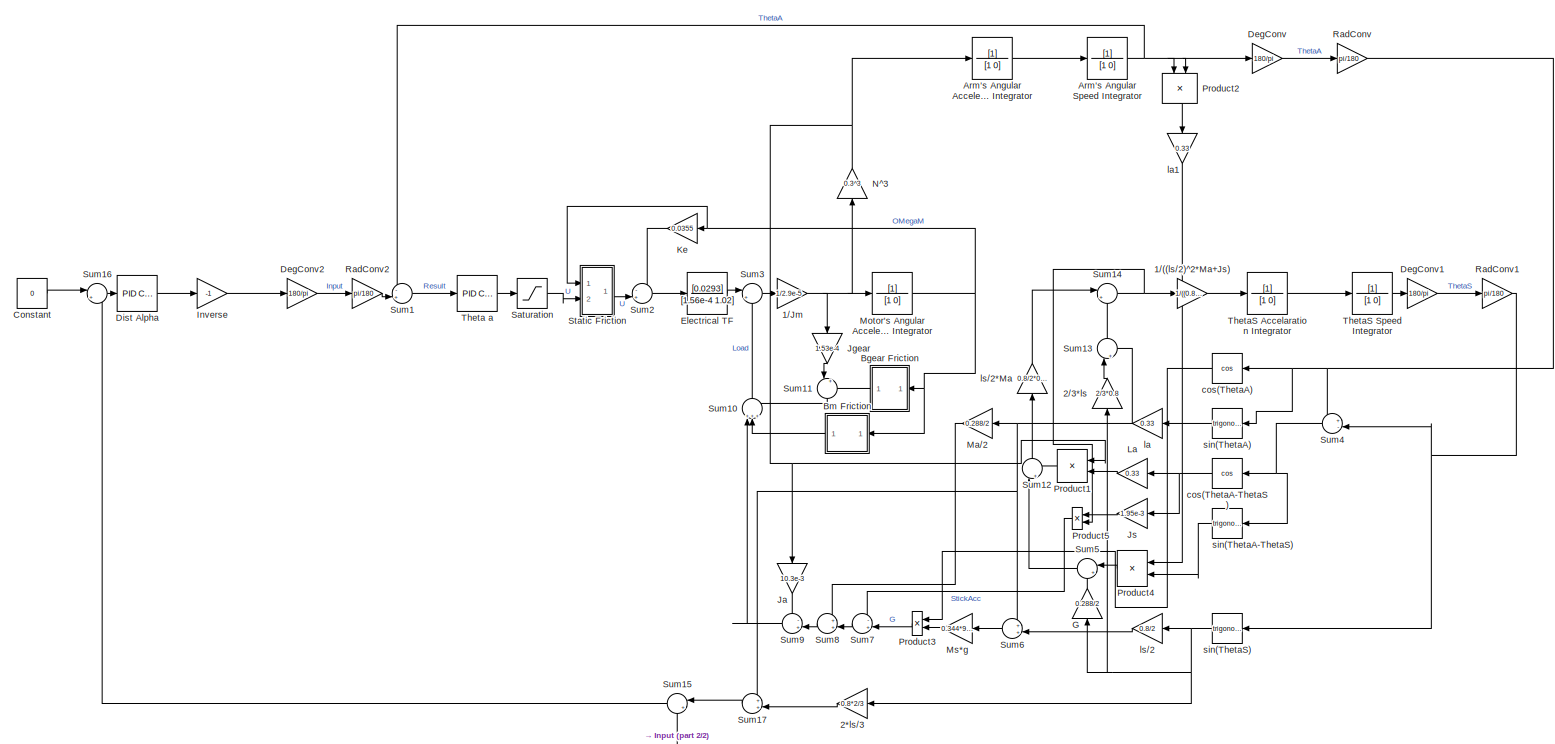
[diagram: root canvas - part 1/2, most of the canvas]
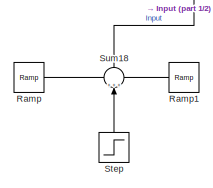
[diagram: root canvas - part 2/2, bottom center region]
MODEL slx_b78cf8a66c72
KIND model
CONFIG AbsTol = auto
CONFIG EnableMultiTasking = off
CONFIG FixedStep = auto
CONFIG MaxStep = auto
CONFIG MinStep = auto
CONFIG RelTol = 1e-3
CONFIG SampleTimeConstraint = Unconstrained
CONFIG Solver = VariableStepAuto
CONFIG SolverName = VariableStepAuto
CONFIG StartTime = 0.0
CONFIG StopTime = 10
BLOCK [Gain] 1//((ls//2)^2*Ma+Js)
  Gain = 1/((0.8/2)^2*0.288+1.95e-3)
  OutDataTypeStr = Inherit: Inherit via internal rule
  ParamDataTypeStr = Inherit: Inherit via internal rule
  SaturateOnIntegerOverflow = off
BLOCK [Gain] 1//Jm
  Gain = 1/2.9e-5
  OutDataTypeStr = Inherit: Inherit via internal rule
  ParamDataTypeStr = Inherit: Inherit via internal rule
  SaturateOnIntegerOverflow = off
BLOCK [Gain] 2*ls//3
  Gain = 0.8*2/3
  OutDataTypeStr = Inherit: Inherit via internal rule
  ParamDataTypeStr = Inherit: Inherit via internal rule
  SaturateOnIntegerOverflow = off
BLOCK [Gain] 2//3*ls
  Gain = 2/3*0.8
  OutDataTypeStr = Inherit: Inherit via internal rule
  ParamDataTypeStr = Inherit: Inherit via internal rule
  SaturateOnIntegerOverflow = off
BLOCK [TransferFcn] Arm's Angular Acceleration Integrator
  Denominator = [1 0]
BLOCK [TransferFcn] Arm's Angular Speed Integrator
  Denominator = [1 0]
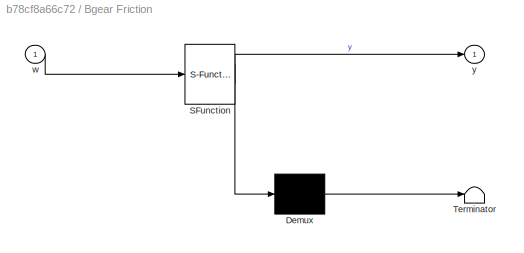
BLOCK [SubSystem] Bgear Friction
  ErrorFcn = Stateflow.Translate.translate
  PermitHierarchicalResolution = ExplicitOnly
  Ports = [1, 1]
  RequestExecContextInheritance = off
  SFBlockType = MATLAB Function
  TreatAsAtomicUnit = on
  Variant = off
BLOCK [Demux] Bgear Friction/ Demux 
  Outputs = 1
  Ports = [1, 1]
BLOCK [S-Function] Bgear Friction/ SFunction 
  EnableBusSupport = on
  FunctionName = sf_sfun
  PortCounts = [1 2]
  Ports = [1, 2]
  SFcnIsStateOwnerBlock = off
  SFunctionDeploymentMode = off
  Tag = Stateflow S-Function UnlinearSimulation3 3
BLOCK [Terminator] Bgear Friction/ Terminator 
BLOCK [Inport] Bgear Friction/w
  IconDisplay = Port number
BLOCK [Outport] Bgear Friction/y
  IconDisplay = Port number
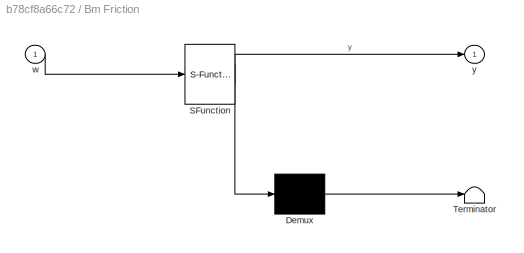
BLOCK [SubSystem] Bm Friction
  ErrorFcn = Stateflow.Translate.translate
  PermitHierarchicalResolution = ExplicitOnly
  Ports = [1, 1]
  RequestExecContextInheritance = off
  SFBlockType = MATLAB Function
  TreatAsAtomicUnit = on
  Variant = off
BLOCK [Demux] Bm Friction/ Demux 
  Outputs = 1
  Ports = [1, 1]
BLOCK [S-Function] Bm Friction/ SFunction 
  EnableBusSupport = on
  FunctionName = sf_sfun
  PortCounts = [1 2]
  Ports = [1, 2]
  SFcnIsStateOwnerBlock = off
  SFunctionDeploymentMode = off
  Tag = Stateflow S-Function UnlinearSimulation3 1
BLOCK [Terminator] Bm Friction/ Terminator 
BLOCK [Inport] Bm Friction/w
  IconDisplay = Port number
BLOCK [Outport] Bm Friction/y
  IconDisplay = Port number
BLOCK [Constant] Constant
  Value = 0
BLOCK [Gain] DegConv
  Gain = 180/pi
  OutDataTypeStr = Inherit: Inherit via internal rule
  ParamDataTypeStr = Inherit: Inherit via internal rule
  SaturateOnIntegerOverflow = off
BLOCK [Gain] DegConv1
  Gain = 180/pi
  OutDataTypeStr = Inherit: Inherit via internal rule
  ParamDataTypeStr = Inherit: Inherit via internal rule
  SaturateOnIntegerOverflow = off
BLOCK [Gain] DegConv2
  Gain = 180/pi
  OutDataTypeStr = Inherit: Inherit via internal rule
  ParamDataTypeStr = Inherit: Inherit via internal rule
  SaturateOnIntegerOverflow = off
BLOCK [Reference] Dist Alpha  REF=simulink/Continuous/PID Controller
  Ports = [1, 1]
  SourceBlock = simulink/Continuous/PID Controller
  SourceProductBaseCode = SL
  SourceProductName = Simulink
  SourceType = PID 1dof
BLOCK [TransferFcn] Electrical TF
  Denominator = [1.56e-4 1.02]
  Numerator = [0.0293]
BLOCK [Gain] G
  Gain = 0.288/2
  OutDataTypeStr = Inherit: Inherit via internal rule
  ParamDataTypeStr = Inherit: Inherit via internal rule
  SaturateOnIntegerOverflow = off
BLOCK [Gain] Inverse
  Gain = -1
  OutDataTypeStr = Inherit: Inherit via internal rule
  ParamDataTypeStr = Inherit: Inherit via internal rule
  SaturateOnIntegerOverflow = off
BLOCK [Gain] Ja
  Gain = 10.3e-3
  OutDataTypeStr = Inherit: Inherit via internal rule
  ParamDataTypeStr = Inherit: Inherit via internal rule
  SaturateOnIntegerOverflow = off
BLOCK [Gain] Jgear
  Gain = 1.53e-4
  OutDataTypeStr = Inherit: Inherit via internal rule
  ParamDataTypeStr = Inherit: Inherit via internal rule
  SaturateOnIntegerOverflow = off
BLOCK [Gain] Js
  Gain = 1.95e-3
  OutDataTypeStr = Inherit: Inherit via internal rule
  ParamDataTypeStr = Inherit: Inherit via internal rule
  SaturateOnIntegerOverflow = off
BLOCK [Gain] Ke
  Gain = 0.0355
  OutDataTypeStr = Inherit: Inherit via internal rule
  ParamDataTypeStr = Inherit: Inherit via internal rule
  SaturateOnIntegerOverflow = off
BLOCK [Gain] La
  Gain = 0.33
  OutDataTypeStr = Inherit: Inherit via internal rule
  ParamDataTypeStr = Inherit: Inherit via internal rule
  SaturateOnIntegerOverflow = off
BLOCK [Gain] Ma//2
  Gain = 0.288/2
  OutDataTypeStr = Inherit: Inherit via internal rule
  ParamDataTypeStr = Inherit: Inherit via internal rule
  SaturateOnIntegerOverflow = off
BLOCK [TransferFcn] Motor's Angular Acceleration Integrator
  Denominator = [1 0]
BLOCK [Gain] Ms*g
  Gain = 0.344*9.8
  OutDataTypeStr = Inherit: Inherit via internal rule
  ParamDataTypeStr = Inherit: Inherit via internal rule
  SaturateOnIntegerOverflow = off
BLOCK [Gain] N^3
  Gain = 0.3^3
  OutDataTypeStr = Inherit: Inherit via internal rule
  ParamDataTypeStr = Inherit: Inherit via internal rule
  SaturateOnIntegerOverflow = off
BLOCK [Product] Product1
  InputSameDT = off
  OutDataTypeStr = Inherit: Inherit via internal rule
  Ports = [2, 1]
  RndMeth = Floor
  SaturateOnIntegerOverflow = off
BLOCK [Product] Product2
  InputSameDT = off
  OutDataTypeStr = Inherit: Inherit via internal rule
  Ports = [2, 1]
  RndMeth = Floor
  SaturateOnIntegerOverflow = off
BLOCK [Product] Product3
  InputSameDT = off
  OutDataTypeStr = Inherit: Inherit via internal rule
  Ports = [2, 1]
  RndMeth = Floor
  SaturateOnIntegerOverflow = off
BLOCK [Product] Product4
  InputSameDT = off
  OutDataTypeStr = Inherit: Inherit via internal rule
  Ports = [2, 1]
  RndMeth = Floor
  SaturateOnIntegerOverflow = off
BLOCK [Product] Product5
  InputSameDT = off
  OutDataTypeStr = Inherit: Inherit via internal rule
  Ports = [2, 1]
  RndMeth = Floor
  SaturateOnIntegerOverflow = off
BLOCK [Gain] RadConv
  Gain = pi/180
  OutDataTypeStr = Inherit: Inherit via internal rule
  ParamDataTypeStr = Inherit: Inherit via internal rule
  SaturateOnIntegerOverflow = off
BLOCK [Gain] RadConv1
  Gain = pi/180
  OutDataTypeStr = Inherit: Inherit via internal rule
  ParamDataTypeStr = Inherit: Inherit via internal rule
  SaturateOnIntegerOverflow = off
BLOCK [Gain] RadConv2
  Gain = pi/180
  OutDataTypeStr = Inherit: Inherit via internal rule
  ParamDataTypeStr = Inherit: Inherit via internal rule
  SaturateOnIntegerOverflow = off
BLOCK [Reference] Ramp  REF=simulink/Sources/Ramp
  Ports = [0, 1]
  SourceBlock = simulink/Sources/Ramp
  SourceProductBaseCode = SL
  SourceProductName = Simulink
  SourceType = Ramp
BLOCK [Reference] Ramp1  REF=simulink/Sources/Ramp
  Ports = [0, 1]
  SourceBlock = simulink/Sources/Ramp
  SourceProductBaseCode = SL
  SourceProductName = Simulink
  SourceType = Ramp
BLOCK [Saturate] Saturation
  InputPortMap = u0
  LowerLimit = -14
  Ports = [1, 1]
  UpperLimit = 14
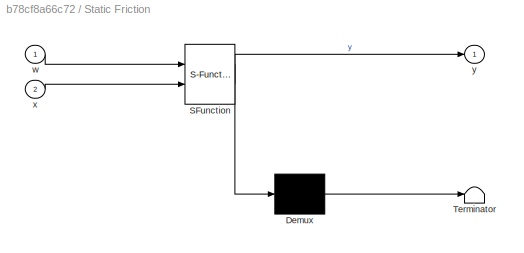
BLOCK [SubSystem] Static Friction
  ErrorFcn = Stateflow.Translate.translate
  PermitHierarchicalResolution = ExplicitOnly
  Ports = [2, 1]
  RequestExecContextInheritance = off
  SFBlockType = MATLAB Function
  TreatAsAtomicUnit = on
  Variant = off
BLOCK [Demux] Static Friction/ Demux 
  Outputs = 1
  Ports = [1, 1]
BLOCK [S-Function] Static Friction/ SFunction 
  EnableBusSupport = on
  FunctionName = sf_sfun
  PortCounts = [2 2]
  Ports = [2, 2]
  SFcnIsStateOwnerBlock = off
  SFunctionDeploymentMode = off
  Tag = Stateflow S-Function UnlinearSimulation3 2
BLOCK [Terminator] Static Friction/ Terminator 
BLOCK [Inport] Static Friction/w
  IconDisplay = Port number
BLOCK [Inport] Static Friction/x
  IconDisplay = Port number
  Port = 2
BLOCK [Outport] Static Friction/y
  IconDisplay = Port number
BLOCK [Step] Step
  After = -2/3*sin(13.5*pi/180)*0.1*0.8
  SampleTime = 0
  Time = 0.1
BLOCK [Sum] Sum1
  IconShape = round
  InputSameDT = off
  Inputs = -+|
  OutDataTypeStr = Inherit: Inherit via internal rule
  Ports = [2, 1]
  SaturateOnIntegerOverflow = off
BLOCK [Sum] Sum10
  IconShape = round
  InputSameDT = off
  Inputs = +++
  OutDataTypeStr = Inherit: Inherit via internal rule
  Ports = [3, 1]
  SaturateOnIntegerOverflow = off
BLOCK [Sum] Sum11
  IconShape = round
  InputSameDT = off
  Inputs = |++
  OutDataTypeStr = Inherit: Inherit via internal rule
  Ports = [2, 1]
  SaturateOnIntegerOverflow = off
BLOCK [Sum] Sum12
  IconShape = round
  InputSameDT = off
  Inputs = |+-
  OutDataTypeStr = Inherit: Inherit via internal rule
  Ports = [2, 1]
  SaturateOnIntegerOverflow = off
BLOCK [Sum] Sum13
  IconShape = round
  InputSameDT = off
  Inputs = |++
  OutDataTypeStr = Inherit: Inherit via internal rule
  Ports = [2, 1]
  SaturateOnIntegerOverflow = off
BLOCK [Sum] Sum14
  IconShape = round
  InputSameDT = off
  Inputs = |++
  OutDataTypeStr = Inherit: Inherit via internal rule
  Ports = [2, 1]
  SaturateOnIntegerOverflow = off
BLOCK [Sum] Sum15
  IconShape = round
  InputSameDT = off
  Inputs = |++
  OutDataTypeStr = Inherit: Inherit via internal rule
  Ports = [2, 1]
  SaturateOnIntegerOverflow = off
BLOCK [Sum] Sum16
  IconShape = round
  InputSameDT = off
  Inputs = |+-
  OutDataTypeStr = Inherit: Inherit via internal rule
  Ports = [2, 1]
  SaturateOnIntegerOverflow = off
BLOCK [Sum] Sum17
  IconShape = round
  InputSameDT = off
  Inputs = ++|
  OutDataTypeStr = Inherit: Inherit via internal rule
  Ports = [2, 1]
  SaturateOnIntegerOverflow = off
BLOCK [Sum] Sum18
  IconShape = round
  InputSameDT = off
  Inputs = +++
  OutDataTypeStr = Inherit: Inherit via internal rule
  Ports = [3, 1]
  SaturateOnIntegerOverflow = off
BLOCK [Sum] Sum2
  IconShape = round
  InputSameDT = off
  Inputs = -+|
  OutDataTypeStr = Inherit: Inherit via internal rule
  Ports = [2, 1]
  SaturateOnIntegerOverflow = off
BLOCK [Sum] Sum3
  IconShape = round
  InputSameDT = off
  Inputs = |+-
  OutDataTypeStr = Inherit: Inherit via internal rule
  Ports = [2, 1]
  SaturateOnIntegerOverflow = off
BLOCK [Sum] Sum4
  IconShape = round
  InputSameDT = off
  Inputs = +-|
  OutDataTypeStr = Inherit: Inherit via internal rule
  Ports = [2, 1]
  SaturateOnIntegerOverflow = off
BLOCK [Sum] Sum5
  IconShape = round
  InputSameDT = off
  Inputs = |++
  OutDataTypeStr = Inherit: Inherit via internal rule
  Ports = [2, 1]
  SaturateOnIntegerOverflow = off
BLOCK [Sum] Sum6
  IconShape = round
  InputSameDT = off
  Inputs = ++|
  OutDataTypeStr = Inherit: Inherit via internal rule
  Ports = [2, 1]
  SaturateOnIntegerOverflow = off
BLOCK [Sum] Sum7
  IconShape = round
  InputSameDT = off
  Inputs = -+|
  OutDataTypeStr = Inherit: Inherit via internal rule
  Ports = [2, 1]
  SaturateOnIntegerOverflow = off
BLOCK [Sum] Sum8
  IconShape = round
  InputSameDT = off
  Inputs = ++|
  OutDataTypeStr = Inherit: Inherit via internal rule
  Ports = [2, 1]
  SaturateOnIntegerOverflow = off
BLOCK [Sum] Sum9
  IconShape = round
  InputSameDT = off
  Inputs = -+|
  OutDataTypeStr = Inherit: Inherit via internal rule
  Ports = [2, 1]
  SaturateOnIntegerOverflow = off
BLOCK [Reference] Theta a  REF=simulink/Continuous/PID Controller
  Ports = [1, 1]
  SourceBlock = simulink/Continuous/PID Controller
  SourceProductBaseCode = SL
  SourceProductName = Simulink
  SourceType = PID 1dof
BLOCK [TransferFcn] ThetaS Accelaration Integrator
  Denominator = [1 0]
BLOCK [TransferFcn] ThetaS Speed Integrator
  Denominator = [1 0]
BLOCK [Trigonometry] cos(ThetaA)
  Operator = cos
  Ports = [1, 1]
BLOCK [Trigonometry] cos(ThetaA-ThetaS)
  Operator = cos
  Ports = [1, 1]
BLOCK [Gain] la
  Gain = 0.33
  OutDataTypeStr = Inherit: Inherit via internal rule
  ParamDataTypeStr = Inherit: Inherit via internal rule
  SaturateOnIntegerOverflow = off
BLOCK [Gain] la1
  Gain = 0.33
  OutDataTypeStr = Inherit: Inherit via internal rule
  ParamDataTypeStr = Inherit: Inherit via internal rule
  SaturateOnIntegerOverflow = off
BLOCK [Gain] ls//2
  Gain = 0.8/2
  OutDataTypeStr = Inherit: Inherit via internal rule
  ParamDataTypeStr = Inherit: Inherit via internal rule
  SaturateOnIntegerOverflow = off
BLOCK [Gain] ls//2*Ma
  Gain = 0.8/2*0.288
  OutDataTypeStr = Inherit: Inherit via internal rule
  ParamDataTypeStr = Inherit: Inherit via internal rule
  SaturateOnIntegerOverflow = off
BLOCK [Trigonometry] sin(ThetaA)
  Ports = [1, 1]
BLOCK [Trigonometry] sin(ThetaA-ThetaS)
  Ports = [1, 1]
BLOCK [Trigonometry] sin(ThetaS)
  Ports = [1, 1]
LINE 1//((ls//2)^2*Ma+Js):1 -> ThetaS Accelaration Integrator:1
NET 1//Jm:1 -> Jgear:1, Motor's Angular Acceleration Integrator:1, N^3:1
LINE 2*ls//3:1 -> Sum17:2
LINE 2//3*ls:1 -> Sum13:1
LINE Arm's Angular Acceleration Integrator:1 -> Arm's Angular Speed Integrator:1
NET Arm's Angular Speed Integrator:1 -> DegConv:1, Product2:1, Product2:2, Sum1:1
LINE Bgear Friction:1 -> Sum11:2
LINE Bm Friction:1 -> Sum10:2
LINE Constant:1 -> Sum16:1
LINE DegConv1:1 -> RadConv1:1
LINE DegConv2:1 -> RadConv2:1
LINE DegConv:1 -> RadConv:1
LINE Dist Alpha:1 -> Inverse:1
LINE Electrical TF:1 -> Sum3:1
LINE G:1 -> Sum5:2
LINE Inverse:1 -> DegConv2:1
LINE Ja:1 -> Sum9:1
LINE Jgear:1 -> Sum11:1
LINE Js:1 -> Product5:1
LINE Ke:1 -> Sum2:1
LINE La:1 -> Product1:2
LINE Ma//2:1 -> Sum8:1
NET Motor's Angular Acceleration Integrator:1 -> Bgear Friction:1, Bm Friction:1, Ke:1, Static Friction:1
LINE Ms*g:1 -> Product3:2
NET N^3:1 -> Arm's Angular Acceleration Integrator:1, Ja:1, Product1:1
LINE Product1:1 -> Sum12:2
LINE Product2:1 -> la1:1
LINE Product3:1 -> Sum7:2
LINE Product4:1 -> Sum5:1
LINE Product5:1 -> Sum7:1
NET RadConv1:1 -> Sum4:2, sin(ThetaS):1
LINE RadConv2:1 -> Sum1:2
NET RadConv:1 -> Sum4:1, cos(ThetaA):1, sin(ThetaA):1
LINE Ramp1:1 -> Sum18:3
LINE Ramp:1 -> Sum18:1
LINE Saturation:1 -> Static Friction:2
LINE Static Friction:1 -> Sum2:2
LINE Step:1 -> Sum18:2
LINE Sum10:1 -> Sum3:2
LINE Sum11:1 -> Sum10:3
LINE Sum12:1 -> ls//2*Ma:1
LINE Sum13:1 -> Sum14:2
NET Sum14:1 -> 1//((ls//2)^2*Ma+Js):1, Product5:2
LINE Sum15:1 -> Sum16:2
LINE Sum16:1 -> Dist Alpha:1
LINE Sum17:1 -> Sum15:1
LINE Sum18:1 -> Sum15:2
LINE Sum1:1 -> Theta a:1
LINE Sum2:1 -> Electrical TF:1
LINE Sum3:1 -> 1//Jm:1
NET Sum4:1 -> cos(ThetaA-ThetaS):1, sin(ThetaA-ThetaS):1
LINE Sum5:1 -> Sum12:1
LINE Sum6:1 -> Ms*g:1
LINE Sum7:1 -> Sum8:2
LINE Sum8:1 -> Sum9:2
LINE Sum9:1 -> Sum10:1
LINE Theta a:1 -> Saturation:1
LINE ThetaS Accelaration Integrator:1 -> ThetaS Speed Integrator:1
LINE ThetaS Speed Integrator:1 -> DegConv1:1
LINE cos(ThetaA):1 -> Product3:1
NET cos(ThetaA-ThetaS):1 -> Js:1, La:1
LINE la1:1 -> Product4:1
NET la:1 -> Ma//2:1, Sum13:2, Sum17:1, Sum6:1
LINE ls//2*Ma:1 -> Sum14:1
LINE ls//2:1 -> Sum6:2
LINE sin(ThetaA):1 -> la:1
LINE sin(ThetaA-ThetaS):1 -> Product4:2
NET sin(ThetaS):1 -> 2*ls//3:1, 2//3*ls:1, G:1, ls//2:1
note: NET lines group one-source signal fan-out (src -> all destinations, sorted); 1:1 wires keep LINE
CHART Bm Friction states=1 transitions=1
  STATE_LABEL 'eML_blk_kernel()'
  STATE_LABEL 'SCRIPT:\nfunction y = fcn(w)\n\nBm=1.59e-4;\nimini=0.64;\nKt=0.0293;\n\nif w~=0\n    y=Bm*w;\nelse\n    y=0;\nend  \n'
CHART Static Friction states=1 transitions=1
  STATE_LABEL 'eML_blk_kernel()'
  STATE_LABEL 'SCRIPT:\nfunction y = fcn(w,x)\n\n\nUmini=1.377;\n\nif w~=0\n    y=x;\nelseif abs(x)>=Umini\n    y=x;\nelse\n    y=0;\nend  \n'
CHART Bgear Friction states=1 transitions=1
  STATE_LABEL 'eML_blk_kernel()'
  STATE_LABEL 'SCRIPT:\nfunction y = fcn(w)\n\nBgear=1.11e-3;\nimini=1.35;\nKt=0.0293;\nN=0.3;\n\nif w~=0\n    y=Bgear*w;\nelse\n    y=0;\nend  \n'
